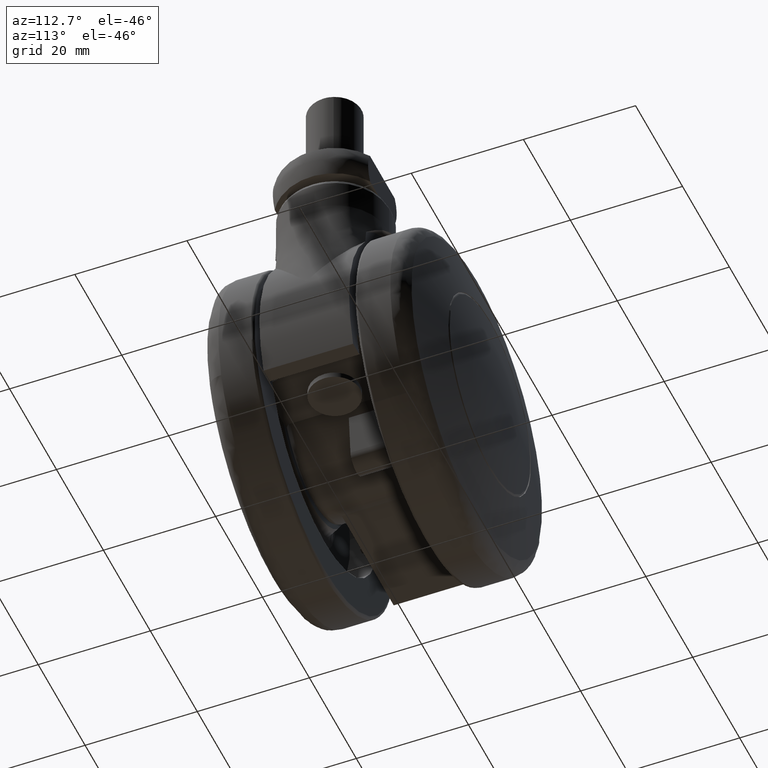
[diagram: clean part render]
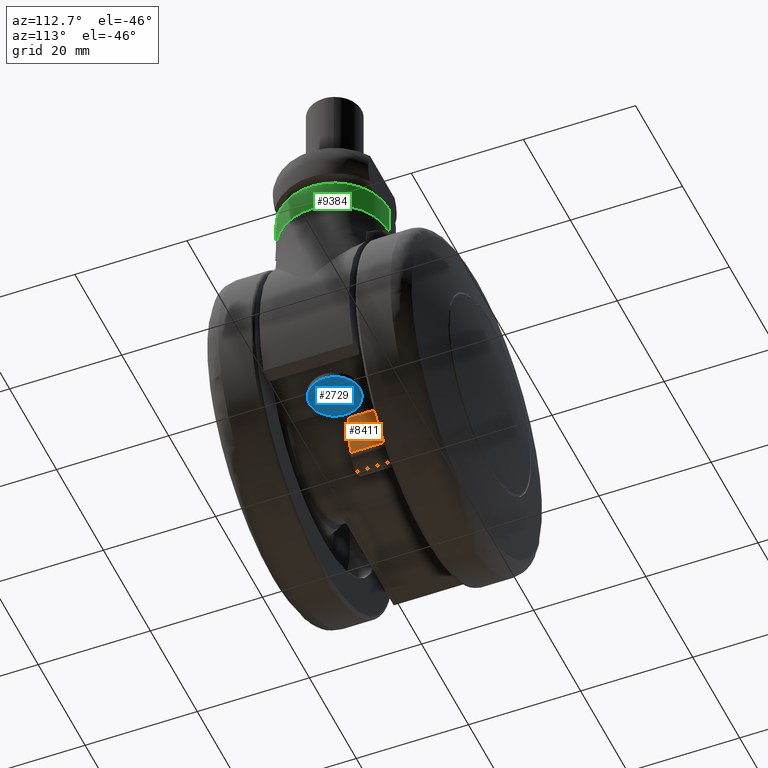
[diagram: same view with three faces highlighted in distinct colors, each labeled with its STEP entity id]
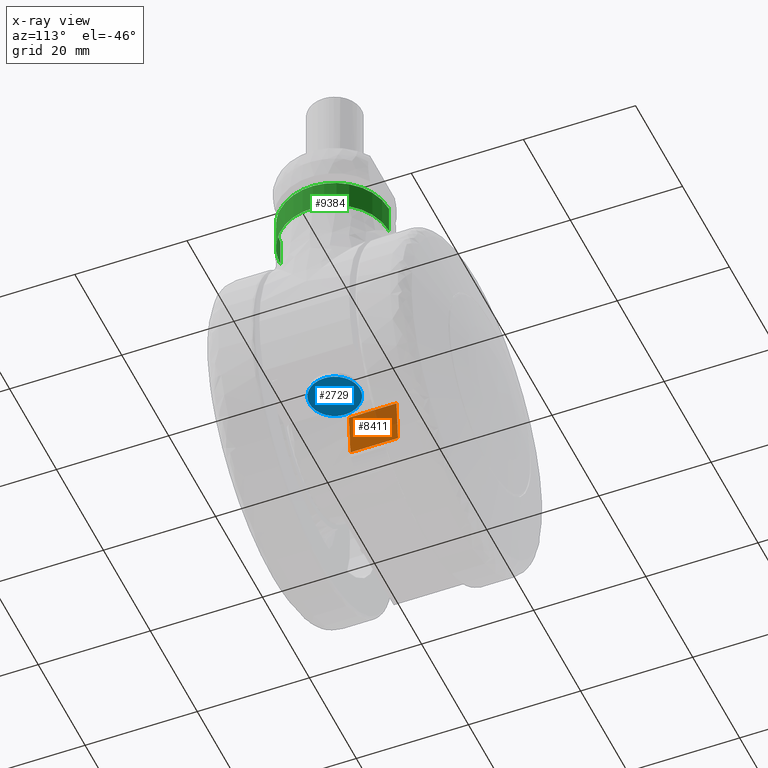
[diagram: x-ray of the same camera — body ghosted, the three highlighted faces saturated]
A machine part, auxiliary view with three faces highlighted in distinct colors.
The next image is the same camera in x-ray (body ghosted, the three faces saturated) — at least one of them is partly hidden behind the body in this view.
Their STEP definitions:

[orange] entity #8411 — the highlighted face is a freeform B-spline surface patch.
#8233=CARTESIAN_POINT('',(10.335816561942920,0.0,-15.417889356869351));
#8234=VERTEX_POINT('',#8233);
#8248=CARTESIAN_POINT('',(11.0,0.0,-7.826237921249259));
#8249=VERTEX_POINT('',#8248);
#8250=CARTESIAN_POINT('',(11.0,0.0,-7.826237921249259));
#8251=CARTESIAN_POINT('',(10.335816561942920,0.0,-15.417889356869351));
#8252=QUASI_UNIFORM_CURVE('',1,(#8250,#8251),.UNSPECIFIED.,.F.,.U.);
#8253=EDGE_CURVE('',#8249,#8234,#8252,.T.);
#8329=CARTESIAN_POINT('',(11.0,8.500000000000000,-7.826237921249259));
#8330=VERTEX_POINT('',#8329);
#8344=CARTESIAN_POINT('',(10.335816561942920,8.500000000000000,-15.417889356869351));
#8345=VERTEX_POINT('',#8344);
#8346=CARTESIAN_POINT('',(11.0,8.500000000000000,-7.826237921249259));
#8347=CARTESIAN_POINT('',(10.335816561942920,8.500000000000000,-15.417889356869351));
#8348=QUASI_UNIFORM_CURVE('',1,(#8346,#8347),.UNSPECIFIED.,.F.,.U.);
#8349=EDGE_CURVE('',#8330,#8345,#8348,.T.);
#8388=CARTESIAN_POINT('',(10.335816561942920,8.500000000000000,-15.417889356869351));
#8389=CARTESIAN_POINT('',(10.335816561942920,0.0,-15.417889356869351));
#8390=QUASI_UNIFORM_CURVE('',1,(#8388,#8389),.UNSPECIFIED.,.F.,.U.);
#8391=EDGE_CURVE('',#8345,#8234,#8390,.T.);
#8396=CARTESIAN_POINT('',(10.302640577932721,-0.424574983525350,-15.797092589301741));
#8397=CARTESIAN_POINT('',(11.033175930565850,-0.424574983525350,-7.447035299688751));
#8398=CARTESIAN_POINT('',(10.302640577932721,8.924575211513114,-15.797092589301741));
#8399=CARTESIAN_POINT('',(11.033175930565850,8.924575211513114,-7.447035299688751));
#8400=B_SPLINE_SURFACE_WITH_KNOTS('',1,1,((#8396,#8398),(#8397,#8399)),.UNSPECIFIED.,.F.,.F.,.U.,(2,2),(2,2),(0.0,8.381953151936957),(0.0,9.349150195038464),.UNSPECIFIED.);
#8401=ORIENTED_EDGE('',*,*,#8253,.T.);
#8402=ORIENTED_EDGE('',*,*,#8391,.F.);
#8403=ORIENTED_EDGE('',*,*,#8349,.F.);
#8404=CARTESIAN_POINT('',(11.0,8.500000000000000,-7.826237921249259));
#8405=CARTESIAN_POINT('',(11.0,0.0,-7.826237921249259));
#8406=QUASI_UNIFORM_CURVE('',1,(#8404,#8405),.UNSPECIFIED.,.F.,.U.);
#8407=EDGE_CURVE('',#8330,#8249,#8406,.T.);
#8408=ORIENTED_EDGE('',*,*,#8407,.T.);
#8409=EDGE_LOOP('',(#8401,#8402,#8403,#8408));
#8410=FACE_OUTER_BOUND('',#8409,.T.);
#8411=ADVANCED_FACE('',(#8410),#8400,.F.);

[blue] entity #2729 — the highlighted face is a freeform B-spline surface patch.
#2086=CARTESIAN_POINT('',(17.274718428097302,-4.491606592886752,-8.500000000000000));
#2087=VERTEX_POINT('',#2086);
#2093=CARTESIAN_POINT('',(21.500000000000000,0.0,-8.500000000000000));
#2094=VERTEX_POINT('',#2093);
#2095=CARTESIAN_POINT('',(21.500000000000000,0.0,-8.500000000000000));
#2096=CARTESIAN_POINT('',(21.500000000000004,-4.233177300715989,-8.500000000000000));
#2097=CARTESIAN_POINT('',(17.274718428097298,-4.491606592886752,-8.500000000000000));
#2105=(BOUNDED_CURVE()B_SPLINE_CURVE(2,(#2095,#2096,#2097),.UNSPECIFIED.,.F.,.U.)B_SPLINE_CURVE_WITH_KNOTS((3,3),(0.500000000000000,0.739332962227337),.UNSPECIFIED.)CURVE()GEOMETRIC_REPRESENTATION_ITEM()RATIONAL_B_SPLINE_CURVE((1.0,0.719603993300308,0.976072041641843))REPRESENTATION_ITEM(''));
#2106=EDGE_CURVE('',#2094,#2087,#2105,.T.);
#2108=CARTESIAN_POINT('',(16.468846555907572,4.468542941365603,-8.499999999999998));
#2109=VERTEX_POINT('',#2108);
#2110=CARTESIAN_POINT('',(16.468846555907572,4.468542941365603,-8.499999999999998));
#2111=CARTESIAN_POINT('',(16.733492079897900,4.500000000000000,-8.500000000000000));
#2112=CARTESIAN_POINT('',(17.0,4.500000000000000,-8.500000000000000));
#2113=CARTESIAN_POINT('',(21.500000000000000,4.500000000000000,-8.500000000000000));
#2114=CARTESIAN_POINT('',(21.500000000000000,0.0,-8.500000000000000));
#2122=(BOUNDED_CURVE()B_SPLINE_CURVE(2,(#2110,#2111,#2112,#2113,#2114),.UNSPECIFIED.,.F.,.U.)B_SPLINE_CURVE_WITH_KNOTS((3,2,3),(0.229562519797772,0.250000000000000,0.500000000000000),.UNSPECIFIED.)CURVE()GEOMETRIC_REPRESENTATION_ITEM()RATIONAL_B_SPLINE_CURVE((0.956026844902770,0.976056002556532,1.0,0.707106781186547,1.0))REPRESENTATION_ITEM(''));
#2123=EDGE_CURVE('',#2109,#2094,#2122,.T.);
#2167=CARTESIAN_POINT('',(12.500000000000000,0.0,-8.500000000000000));
#2168=VERTEX_POINT('',#2167);
#2169=CARTESIAN_POINT('',(12.500000000000000,0.0,-8.500000000000000));
#2170=CARTESIAN_POINT('',(12.499999999999998,3.996786469019966,-8.500000000000002));
#2171=CARTESIAN_POINT('',(16.468846555907565,4.468542941365603,-8.499999999999998));
#2179=(BOUNDED_CURVE()B_SPLINE_CURVE(2,(#2169,#2170,#2171),.UNSPECIFIED.,.F.,.U.)B_SPLINE_CURVE_WITH_KNOTS((3,3),(0.0,0.229562519797772),.UNSPECIFIED.)CURVE()GEOMETRIC_REPRESENTATION_ITEM()RATIONAL_B_SPLINE_CURVE((1.0,0.731050778630015,0.956026844902769))REPRESENTATION_ITEM(''));
#2180=EDGE_CURVE('',#2168,#2109,#2179,.T.);
#2182=CARTESIAN_POINT('',(17.274718428097298,-4.491606592886753,-8.500000000000000));
#2183=CARTESIAN_POINT('',(17.137487435034629,-4.500000000000000,-8.500000000000000));
#2184=CARTESIAN_POINT('',(17.0,-4.500000000000000,-8.500000000000000));
#2185=CARTESIAN_POINT('',(12.499999999999998,-4.500000000000000,-8.500000000000000));
#2186=CARTESIAN_POINT('',(12.500000000000000,0.0,-8.500000000000000));
#2194=(BOUNDED_CURVE()B_SPLINE_CURVE(2,(#2182,#2183,#2184,#2185,#2186),.UNSPECIFIED.,.F.,.U.)B_SPLINE_CURVE_WITH_KNOTS((3,2,3),(0.739332962227336,0.750000000000000,1.0),.UNSPECIFIED.)CURVE()GEOMETRIC_REPRESENTATION_ITEM()RATIONAL_B_SPLINE_CURVE((0.976072041641842,0.987502787886239,1.0,0.707106781186547,1.0))REPRESENTATION_ITEM(''));
#2195=EDGE_CURVE('',#2087,#2168,#2194,.T.);
#2718=CARTESIAN_POINT('',(21.949549982556249,-4.949440710012609,-8.500000000000000));
#2719=CARTESIAN_POINT('',(12.050449776044941,-4.949440710012609,-8.500000000000000));
#2720=CARTESIAN_POINT('',(21.949549982556249,4.949468149010832,-8.500000000000000));
#2721=CARTESIAN_POINT('',(12.050449776044941,4.949468149010832,-8.500000000000000));
#2722=B_SPLINE_SURFACE_WITH_KNOTS('',1,1,((#2718,#2720),(#2719,#2721)),.UNSPECIFIED.,.F.,.F.,.U.,(2,2),(2,2),(0.0,9.899100206511315),(0.0,9.898908859023440),.UNSPECIFIED.);
#2723=ORIENTED_EDGE('',*,*,#2180,.T.);
#2724=ORIENTED_EDGE('',*,*,#2123,.T.);
#2725=ORIENTED_EDGE('',*,*,#2106,.T.);
#2726=ORIENTED_EDGE('',*,*,#2195,.T.);
#2727=EDGE_LOOP('',(#2723,#2724,#2725,#2726));
#2728=FACE_OUTER_BOUND('',#2727,.T.);
#2729=ADVANCED_FACE('',(#2728),#2722,.T.);

[green] entity #9384 — the highlighted face is a freeform B-spline surface patch.
#9136=CARTESIAN_POINT('',(17.0,9.700000000000001,32.0));
#9137=VERTEX_POINT('',#9136);
#9247=CARTESIAN_POINT('',(17.0,-9.700000000000001,32.0));
#9248=VERTEX_POINT('',#9247);
#9283=CARTESIAN_POINT('',(17.0,9.700000000000001,26.741540999999899));
#9284=VERTEX_POINT('',#9283);
#9297=CARTESIAN_POINT('',(17.0,9.700000000000001,32.0));
#9298=CARTESIAN_POINT('',(17.0,9.700000000000001,26.741540999999899));
#9299=QUASI_UNIFORM_CURVE('',1,(#9297,#9298),.UNSPECIFIED.,.F.,.U.);
#9300=EDGE_CURVE('',#9137,#9284,#9299,.T.);
#9316=CARTESIAN_POINT('',(17.0,-9.700000000000001,26.741540999999899));
#9317=VERTEX_POINT('',#9316);
#9323=CARTESIAN_POINT('',(17.0,-9.700000000000001,26.741540999999899));
#9324=CARTESIAN_POINT('',(17.0,-9.700000000000001,32.0));
#9325=QUASI_UNIFORM_CURVE('',1,(#9323,#9324),.UNSPECIFIED.,.F.,.U.);
#9326=EDGE_CURVE('',#9317,#9248,#9325,.T.);
#9332=CARTESIAN_POINT('',(16.746083601413620,-9.696676052262903,32.131461475000002));
#9333=CARTESIAN_POINT('',(16.746083601413620,-9.696676052262903,26.606792988124891));
#9334=CARTESIAN_POINT('',(26.964248106576129,-9.964248106576156,32.131461475000002));
#9335=CARTESIAN_POINT('',(26.964248106576129,-9.964248106576156,26.606792988124894));
#9336=CARTESIAN_POINT('',(26.696676052262902,0.253916398586355,32.131461475000002));
#9337=CARTESIAN_POINT('',(26.696676052262902,0.253916398586355,26.606792988124891));
#9338=CARTESIAN_POINT('',(26.429103997949682,10.472080903748862,32.131461475000002));
#9339=CARTESIAN_POINT('',(26.429103997949682,10.472080903748862,26.606792988124894));
#9340=CARTESIAN_POINT('',(16.238946771439920,9.670098137211340,32.131461475000002));
#9341=CARTESIAN_POINT('',(16.238946771439920,9.670098137211340,26.606792988124891));
#9349=(BOUNDED_SURFACE()B_SPLINE_SURFACE(1,2,((#9332,#9334,#9336,#9338,#9340),(#9333,#9335,#9337,#9339,#9341)),.UNSPECIFIED.,.F.,.F.,.U.)B_SPLINE_SURFACE_WITH_KNOTS((2,2),(3,2,3),(0.0,5.524668486875110),(0.0,16.669795551513239,33.339591103026471),.UNSPECIFIED.)GEOMETRIC_REPRESENTATION_ITEM()RATIONAL_B_SPLINE_SURFACE(((1.0,0.688354575693754,1.0,0.688354575693754,1.0),(1.0,0.688354575693754,1.0,0.688354575693754,1.0)))REPRESENTATION_ITEM('')SURFACE());
#9350=ORIENTED_EDGE('',*,*,#9326,.F.);
#9351=CARTESIAN_POINT('',(17.0,9.700000000000001,26.741540999999899));
#9352=CARTESIAN_POINT('',(26.699999999999999,9.700000000000003,26.741540999999899));
#9353=CARTESIAN_POINT('',(26.699999999999999,0.0,26.741540999999899));
#9354=CARTESIAN_POINT('',(26.699999999999999,-9.700000000000003,26.741540999999899));
#9355=CARTESIAN_POINT('',(17.0,-9.700000000000001,26.741540999999899));
#9363=(BOUNDED_CURVE()B_SPLINE_CURVE(2,(#9351,#9352,#9353,#9354,#9355),.UNSPECIFIED.,.F.,.U.)B_SPLINE_CURVE_WITH_KNOTS((3,2,3),(0.0,0.500000000000000,1.0),.UNSPECIFIED.)CURVE()GEOMETRIC_REPRESENTATION_ITEM()RATIONAL_B_SPLINE_CURVE((1.0,0.707106781186548,1.0,0.707106781186548,1.0))REPRESENTATION_ITEM(''));
#9364=EDGE_CURVE('',#9284,#9317,#9363,.T.);
#9365=ORIENTED_EDGE('',*,*,#9364,.F.);
#9366=ORIENTED_EDGE('',*,*,#9300,.F.);
#9367=CARTESIAN_POINT('',(17.0,9.700000000000001,32.0));
#9368=CARTESIAN_POINT('',(26.699999999999999,9.700000000000003,31.999999999999996));
#9369=CARTESIAN_POINT('',(26.699999999999999,0.0,32.0));
#9370=CARTESIAN_POINT('',(26.699999999999999,-9.700000000000003,31.999999999999996));
#9371=CARTESIAN_POINT('',(17.0,-9.700000000000001,32.0));
#9379=(BOUNDED_CURVE()B_SPLINE_CURVE(2,(#9367,#9368,#9369,#9370,#9371),.UNSPECIFIED.,.F.,.U.)B_SPLINE_CURVE_WITH_KNOTS((3,2,3),(0.0,0.500000000000000,1.0),.UNSPECIFIED.)CURVE()GEOMETRIC_REPRESENTATION_ITEM()RATIONAL_B_SPLINE_CURVE((1.0,0.707106781186548,1.0,0.707106781186548,1.0))REPRESENTATION_ITEM(''));
#9380=EDGE_CURVE('',#9137,#9248,#9379,.T.);
#9381=ORIENTED_EDGE('',*,*,#9380,.T.);
#9382=EDGE_LOOP('',(#9350,#9365,#9366,#9381));
#9383=FACE_OUTER_BOUND('',#9382,.T.);
#9384=ADVANCED_FACE('',(#9383),#9349,.T.);